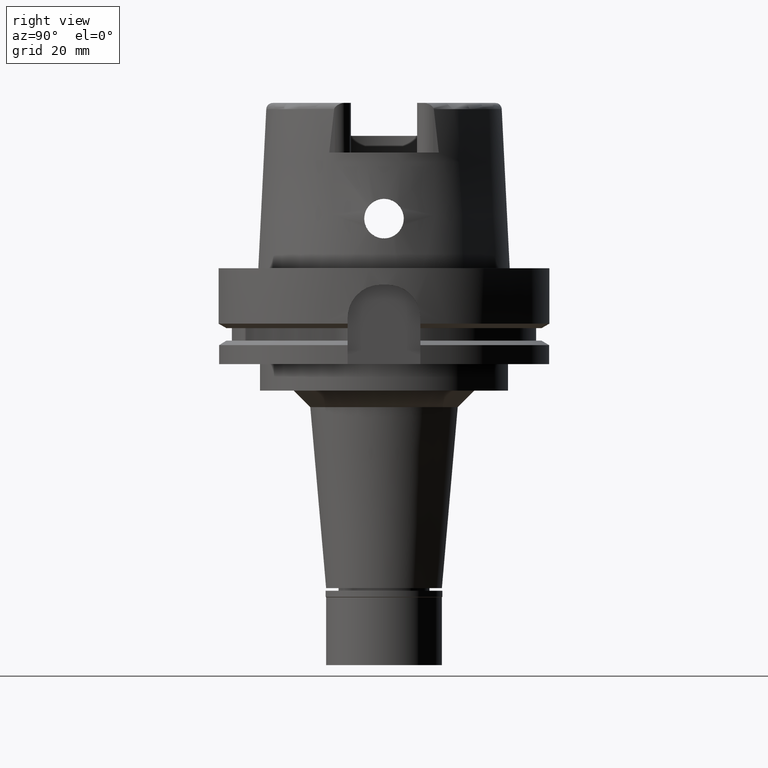
[diagram: clean part render]
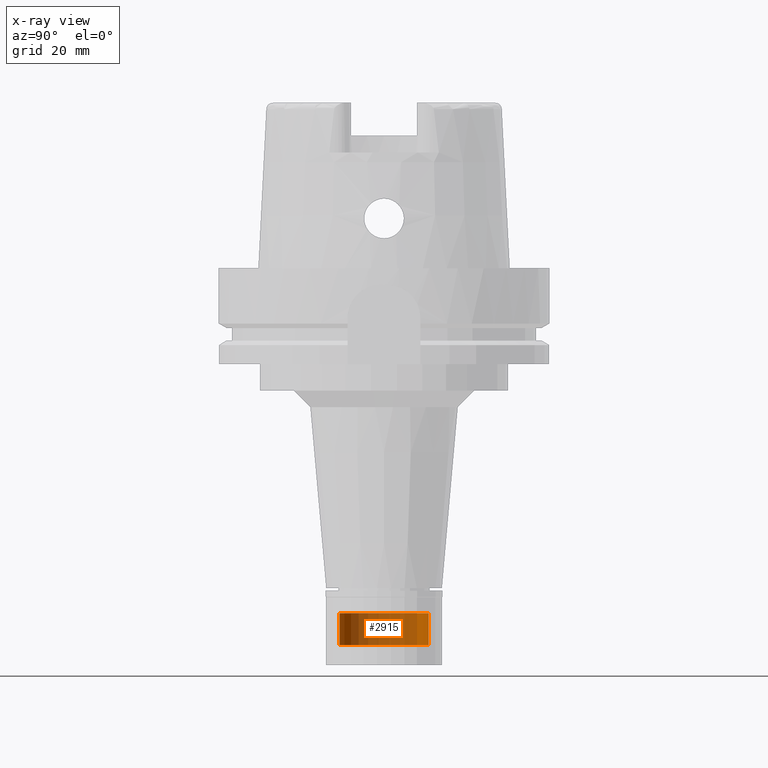
[diagram: x-ray — body ghosted, one internal face saturated and labeled with its STEP entity id]
A machine part, right view, then the same camera in x-ray: the body is ghosted and one INTERNAL B-rep face — a face not visible from any outside direction — is saturated and labeled: STEP entity #2915.
In plain terms, the highlighted cylindrical surface (partial cylindrical patch) has radius 13.5 mm, axis along (0, 0, -1).
Its self-contained STEP definition (entity closure, byte-faithful):
#41 = CYLINDRICAL_SURFACE ( 'NONE', #1037, 13.50000000000000000 ) ;
#264 = ORIENTED_EDGE ( 'NONE', *, *, #3954, .T. ) ;
#555 = VERTEX_POINT ( 'NONE', #5435 ) ;
#1037 = AXIS2_PLACEMENT_3D ( 'NONE', #1304, #5528, #1275 ) ;
#1249 = CARTESIAN_POINT ( 'NONE',  ( 0.0000000000000000000, 13.50000000000000000, -16.50000000000000000 ) ) ;
#1275 = DIRECTION ( 'NONE',  ( 0.0000000000000000000, -1.000000000000000000, 0.0000000000000000000 ) ) ;
#1304 = CARTESIAN_POINT ( 'NONE',  ( 0.0000000000000000000, 0.0000000000000000000, 0.0000000000000000000 ) ) ;
#1425 = LINE ( 'NONE', #2732, #2681 ) ;
#1575 = CIRCLE ( 'NONE', #4086, 13.50000000000000000 ) ;
#1884 = CARTESIAN_POINT ( 'NONE',  ( 0.0000000000000000000, 0.0000000000000000000, -16.50000000000000000 ) ) ;
#2213 = DIRECTION ( 'NONE',  ( 0.0000000000000000000, 1.000000000000000000, 0.0000000000000000000 ) ) ;
#2309 = AXIS2_PLACEMENT_3D ( 'NONE', #1884, #3590, #5305 ) ;
#2443 = CARTESIAN_POINT ( 'NONE',  ( 0.0000000000000000000, 0.0000000000000000000, -6.799999999999999822 ) ) ;
#2588 = DIRECTION ( 'NONE',  ( 0.0000000000000000000, 0.0000000000000000000, 1.000000000000000000 ) ) ;
#2681 = VECTOR ( 'NONE', #4423, 1000.000000000000000 ) ;
#2732 = CARTESIAN_POINT ( 'NONE',  ( 0.0000000000000000000, -13.50000000000000000, -16.50000000000000000 ) ) ;
#2845 = EDGE_CURVE ( 'NONE', #555, #4651, #1575, .T. ) ;
#2857 = VERTEX_POINT ( 'NONE', #1249 ) ;
#2915 = ADVANCED_FACE ( 'NONE', ( #5187 ), #41, .F. ) ;
#3065 = ORIENTED_EDGE ( 'NONE', *, *, #4261, .F. ) ;
#3231 = LINE ( 'NONE', #4148, #4097 ) ;
#3373 = VERTEX_POINT ( 'NONE', #5420 ) ;
#3507 = ORIENTED_EDGE ( 'NONE', *, *, #4277, .T. ) ;
#3563 = EDGE_LOOP ( 'NONE', ( #4716, #3065, #3507, #264 ) ) ;
#3590 = DIRECTION ( 'NONE',  ( 0.0000000000000000000, 0.0000000000000000000, -1.000000000000000000 ) ) ;
#3954 = EDGE_CURVE ( 'NONE', #2857, #555, #3231, .T. ) ;
#4086 = AXIS2_PLACEMENT_3D ( 'NONE', #2443, #2588, #2213 ) ;
#4097 = VECTOR ( 'NONE', #5384, 1000.000000000000000 ) ;
#4148 = CARTESIAN_POINT ( 'NONE',  ( 0.0000000000000000000, 13.50000000000000000, -16.50000000000000000 ) ) ;
#4261 = EDGE_CURVE ( 'NONE', #3373, #4651, #1425, .T. ) ;
#4277 = EDGE_CURVE ( 'NONE', #3373, #2857, #4450, .T. ) ;
#4300 = CARTESIAN_POINT ( 'NONE',  ( 0.0000000000000000000, -13.50000000000000000, -6.799999999999999822 ) ) ;
#4423 = DIRECTION ( 'NONE',  ( 0.0000000000000000000, 0.0000000000000000000, 1.000000000000000000 ) ) ;
#4450 = CIRCLE ( 'NONE', #2309, 13.50000000000000000 ) ;
#4651 = VERTEX_POINT ( 'NONE', #4300 ) ;
#4716 = ORIENTED_EDGE ( 'NONE', *, *, #2845, .T. ) ;
#5187 = FACE_OUTER_BOUND ( 'NONE', #3563, .T. ) ;
#5305 = DIRECTION ( 'NONE',  ( 0.0000000000000000000, -1.000000000000000000, 0.0000000000000000000 ) ) ;
#5384 = DIRECTION ( 'NONE',  ( 0.0000000000000000000, 0.0000000000000000000, 1.000000000000000000 ) ) ;
#5420 = CARTESIAN_POINT ( 'NONE',  ( 0.0000000000000000000, -13.50000000000000000, -16.50000000000000000 ) ) ;
#5435 = CARTESIAN_POINT ( 'NONE',  ( 0.0000000000000000000, 13.50000000000000000, -6.799999999999999822 ) ) ;
#5528 = DIRECTION ( 'NONE',  ( 0.0000000000000000000, 0.0000000000000000000, -1.000000000000000000 ) ) ;